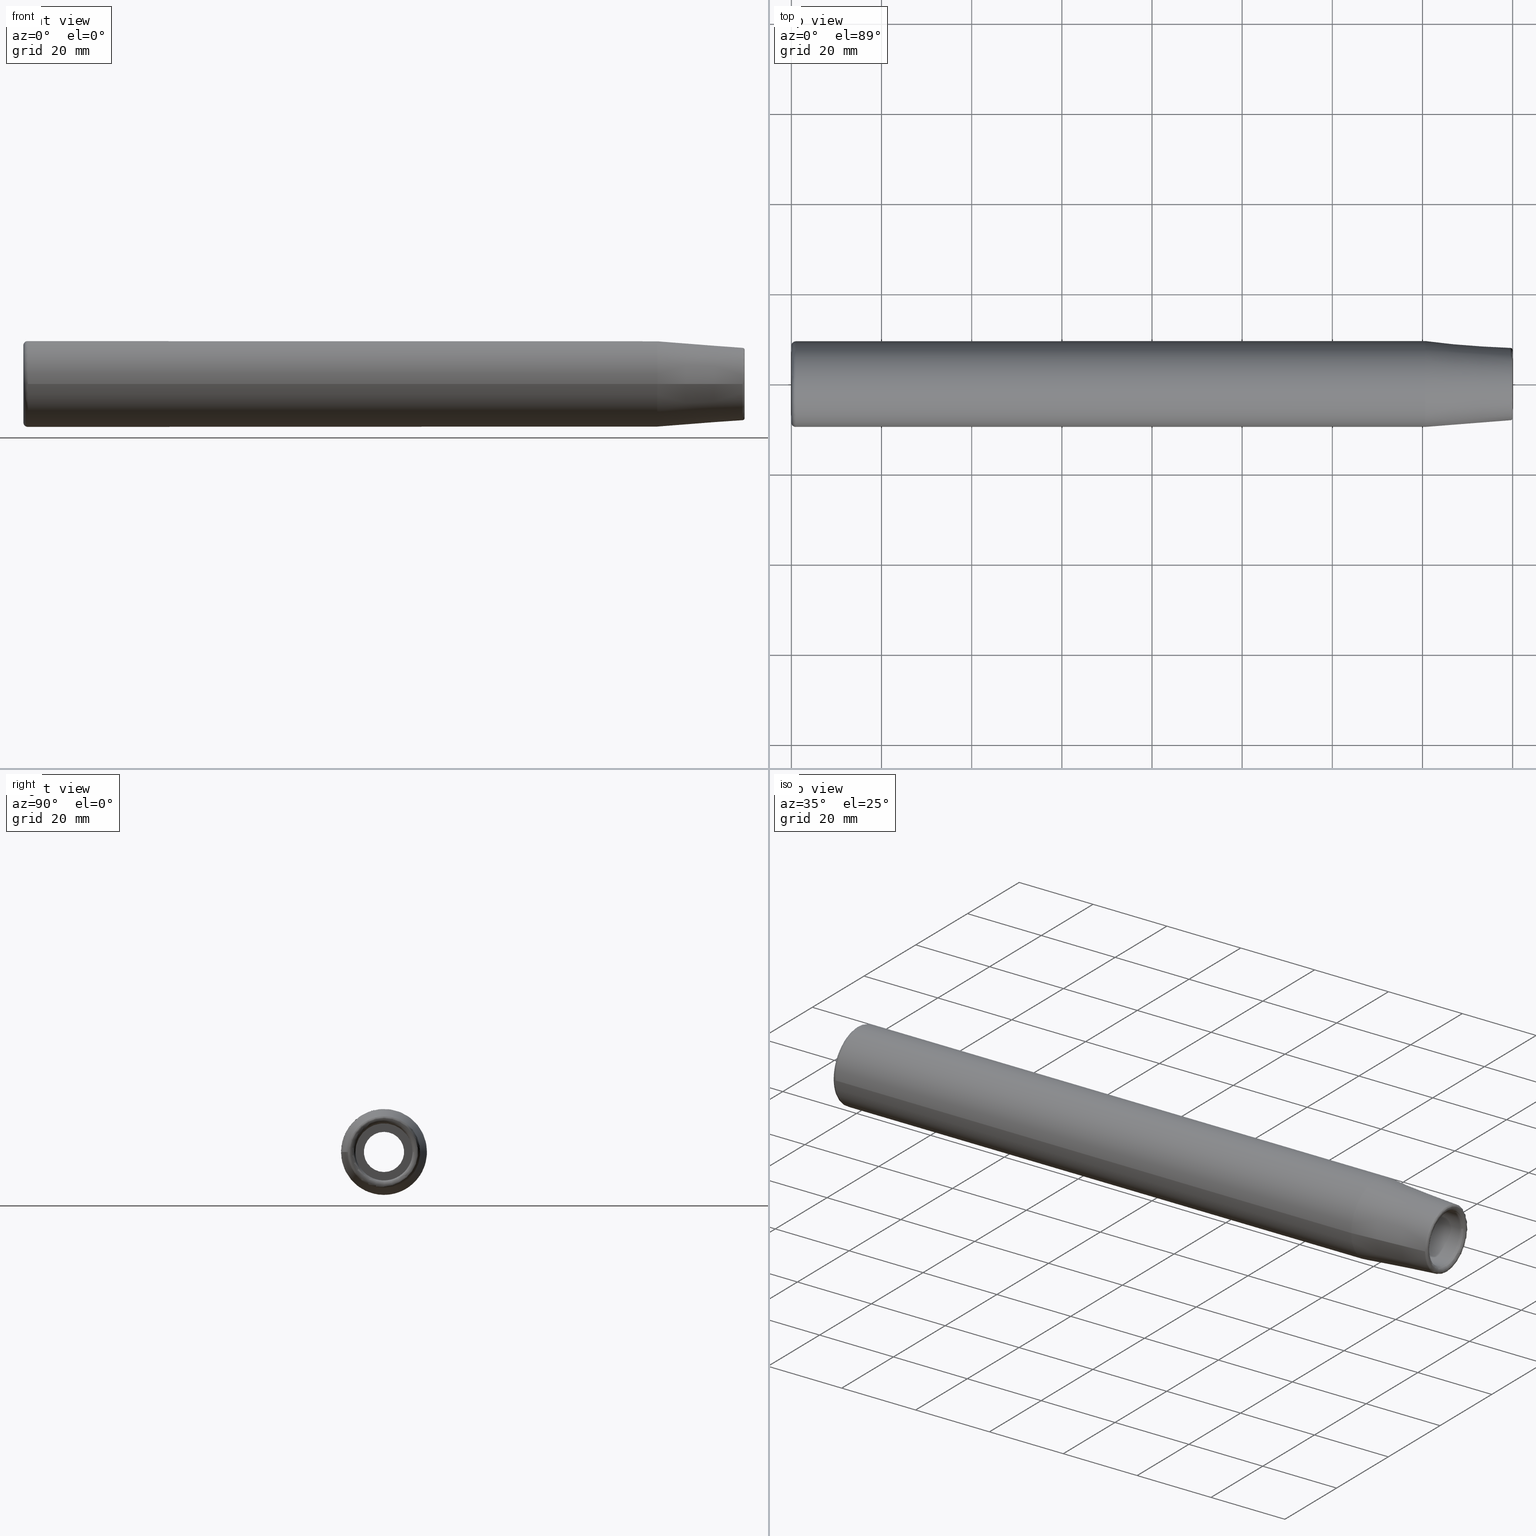
[diagram: canonical four-view strip — front | top / right | iso, engineering-drawing reading convention]
A machine part, canonical four-view strip (front | top / right | iso — engineering-drawing reading convention). The complete STEP part file that produces these views, byte-faithful:
ISO-10303-21;
HEADER;
/* Generated by software containing ST-Developer
 * from STEP Tools, Inc. (www.steptools.com) 
 */

FILE_DESCRIPTION(
/* description */ (''),
/* implementation_level */ '2;1');

FILE_NAME(
/* name */ 'ST19.05-SFH12.7-160(20240111).stp',
/* time_stamp */ '2024-01-11T09:43:24+09:00',
/* author */ ('SSKT'),
/* organization */ (''),
/* preprocessor_version */ 'ST-DEVELOPER v19.2',
/* originating_system */ 'Autodesk Inventor 2024',
/* authorisation */ '');

FILE_SCHEMA (('AUTOMOTIVE_DESIGN { 1 0 10303 214 3 1 1 }'));
ENDSEC;

DATA;
#10=MECHANICAL_DESIGN_GEOMETRIC_PRESENTATION_REPRESENTATION('',(#13),#488);
#11=SHAPE_REPRESENTATION_RELATIONSHIP('SRR','None',#495,#12);
#12=ADVANCED_BREP_SHAPE_REPRESENTATION('',(#14),#487);
#13=STYLED_ITEM('',(#504),#14);
#14=MANIFOLD_SOLID_BREP('\X2\C194B9ACB4DC\X0\1',#253);
#15=FACE_BOUND('',#55,.T.);
#16=FACE_BOUND('',#60,.T.);
#17=FACE_BOUND('',#63,.T.);
#18=FACE_BOUND('',#65,.T.);
#19=PLANE('',#296);
#20=PLANE('',#306);
#21=PLANE('',#311);
#22=PLANE('',#312);
#23=TOROIDAL_SURFACE('',#289,8.525,1.);
#24=TOROIDAL_SURFACE('',#297,7.34999999999999,1.);
#25=TOROIDAL_SURFACE('',#301,7.34999999999999,1.);
#26=TOROIDAL_SURFACE('',#313,7.5378047541709,0.5);
#27=CYLINDRICAL_SURFACE('',#281,4.458734);
#28=CYLINDRICAL_SURFACE('',#287,6.5);
#29=CYLINDRICAL_SURFACE('',#294,9.525);
#30=CYLINDRICAL_SURFACE('',#304,6.34999999999999);
#31=CYLINDRICAL_SURFACE('',#308,6.84999999999999);
#32=FACE_OUTER_BOUND('',#48,.T.);
#33=FACE_OUTER_BOUND('',#49,.T.);
#34=FACE_OUTER_BOUND('',#50,.T.);
#35=FACE_OUTER_BOUND('',#51,.T.);
#36=FACE_OUTER_BOUND('',#52,.T.);
#37=FACE_OUTER_BOUND('',#53,.T.);
#38=FACE_OUTER_BOUND('',#54,.T.);
#39=FACE_OUTER_BOUND('',#56,.T.);
#40=FACE_OUTER_BOUND('',#57,.T.);
#41=FACE_OUTER_BOUND('',#58,.T.);
#42=FACE_OUTER_BOUND('',#59,.T.);
#43=FACE_OUTER_BOUND('',#61,.T.);
#44=FACE_OUTER_BOUND('',#62,.T.);
#45=FACE_OUTER_BOUND('',#64,.T.);
#46=FACE_OUTER_BOUND('',#66,.T.);
#47=FACE_OUTER_BOUND('',#67,.T.);
#48=EDGE_LOOP('',(#166,#167,#168,#169,#170,#171));
#49=EDGE_LOOP('',(#172,#173,#174,#175,#176));
#50=EDGE_LOOP('',(#177,#178,#179,#180,#181));
#51=EDGE_LOOP('',(#182,#183,#184,#185));
#52=EDGE_LOOP('',(#186,#187,#188,#189,#190));
#53=EDGE_LOOP('',(#191,#192,#193,#194,#195));
#54=EDGE_LOOP('',(#196));
#55=EDGE_LOOP('',(#197));
#56=EDGE_LOOP('',(#198,#199,#200,#201,#202,#203));
#57=EDGE_LOOP('',(#204,#205,#206,#207,#208));
#58=EDGE_LOOP('',(#209,#210,#211,#212,#213));
#59=EDGE_LOOP('',(#214));
#60=EDGE_LOOP('',(#215));
#61=EDGE_LOOP('',(#216,#217,#218,#219));
#62=EDGE_LOOP('',(#220));
#63=EDGE_LOOP('',(#221));
#64=EDGE_LOOP('',(#222));
#65=EDGE_LOOP('',(#223));
#66=EDGE_LOOP('',(#224,#225,#226,#227,#228));
#67=EDGE_LOOP('',(#229,#230,#231,#232,#233));
#68=LINE('',#418,#76);
#69=LINE('',#427,#77);
#70=LINE('',#434,#78);
#71=LINE('',#438,#79);
#72=LINE('',#449,#80);
#73=LINE('',#465,#81);
#74=LINE('',#473,#82);
#75=LINE('',#484,#83);
#76=VECTOR('',#324,6.51128397653472);
#77=VECTOR('',#335,4.458734);
#78=VECTOR('',#344,3.25);
#79=VECTOR('',#349,6.5);
#80=VECTOR('',#362,9.525);
#81=VECTOR('',#385,6.34999999999999);
#82=VECTOR('',#394,6.84999999999999);
#83=VECTOR('',#411,8.7625);
#84=CIRCLE('',#277,6.38671079592374);
#85=CIRCLE('',#278,6.63585715714571);
#86=CIRCLE('',#279,6.63585715714571);
#87=CIRCLE('',#280,6.38671079592374);
#88=CIRCLE('',#282,4.458734);
#89=CIRCLE('',#283,4.458734);
#90=CIRCLE('',#284,4.458734);
#91=CIRCLE('',#286,6.5);
#92=CIRCLE('',#288,6.5);
#93=CIRCLE('',#290,8.525);
#94=CIRCLE('',#291,1.);
#95=CIRCLE('',#292,9.525);
#96=CIRCLE('',#293,9.525);
#97=CIRCLE('',#295,9.52500000000001);
#98=CIRCLE('',#298,1.);
#99=CIRCLE('',#299,6.34999999999999);
#100=CIRCLE('',#300,6.34999999999999);
#101=CIRCLE('',#302,7.34999999999999);
#102=CIRCLE('',#303,1.);
#103=CIRCLE('',#305,6.34999999999999);
#104=CIRCLE('',#307,7.5378047541709);
#105=CIRCLE('',#309,6.84999999999999);
#106=CIRCLE('',#310,6.84999999999999);
#107=CIRCLE('',#314,8.03626342103746);
#108=CIRCLE('',#315,8.03626342103746);
#109=CIRCLE('',#316,0.5);
#110=VERTEX_POINT('',#414);
#111=VERTEX_POINT('',#415);
#112=VERTEX_POINT('',#417);
#113=VERTEX_POINT('',#419);
#114=VERTEX_POINT('',#424);
#115=VERTEX_POINT('',#426);
#116=VERTEX_POINT('',#428);
#117=VERTEX_POINT('',#432);
#118=VERTEX_POINT('',#436);
#119=VERTEX_POINT('',#440);
#120=VERTEX_POINT('',#442);
#121=VERTEX_POINT('',#444);
#122=VERTEX_POINT('',#448);
#123=VERTEX_POINT('',#453);
#124=VERTEX_POINT('',#455);
#125=VERTEX_POINT('',#459);
#126=VERTEX_POINT('',#463);
#127=VERTEX_POINT('',#467);
#128=VERTEX_POINT('',#470);
#129=VERTEX_POINT('',#472);
#130=VERTEX_POINT('',#478);
#131=VERTEX_POINT('',#479);
#132=EDGE_CURVE('',#110,#111,#84,.T.);
#133=EDGE_CURVE('',#110,#112,#68,.T.);
#134=EDGE_CURVE('',#113,#112,#85,.T.);
#135=EDGE_CURVE('',#112,#113,#86,.T.);
#136=EDGE_CURVE('',#111,#110,#87,.T.);
#137=EDGE_CURVE('',#114,#114,#88,.T.);
#138=EDGE_CURVE('',#114,#115,#69,.T.);
#139=EDGE_CURVE('',#116,#115,#89,.T.);
#140=EDGE_CURVE('',#115,#116,#90,.T.);
#141=EDGE_CURVE('',#117,#117,#91,.T.);
#142=EDGE_CURVE('',#117,#116,#70,.T.);
#143=EDGE_CURVE('',#118,#118,#92,.T.);
#144=EDGE_CURVE('',#118,#117,#71,.T.);
#145=EDGE_CURVE('',#119,#119,#93,.T.);
#146=EDGE_CURVE('',#119,#120,#94,.T.);
#147=EDGE_CURVE('',#120,#121,#95,.T.);
#148=EDGE_CURVE('',#121,#120,#96,.T.);
#149=EDGE_CURVE('',#121,#122,#72,.T.);
#150=EDGE_CURVE('',#122,#122,#97,.T.);
#151=EDGE_CURVE('',#111,#123,#98,.T.);
#152=EDGE_CURVE('',#123,#124,#99,.T.);
#153=EDGE_CURVE('',#124,#123,#100,.T.);
#154=EDGE_CURVE('',#125,#125,#101,.T.);
#155=EDGE_CURVE('',#125,#113,#102,.T.);
#156=EDGE_CURVE('',#126,#126,#103,.T.);
#157=EDGE_CURVE('',#126,#124,#73,.T.);
#158=EDGE_CURVE('',#127,#127,#104,.T.);
#159=EDGE_CURVE('',#128,#128,#105,.T.);
#160=EDGE_CURVE('',#128,#129,#74,.T.);
#161=EDGE_CURVE('',#129,#129,#106,.T.);
#162=EDGE_CURVE('',#130,#131,#107,.T.);
#163=EDGE_CURVE('',#131,#130,#108,.T.);
#164=EDGE_CURVE('',#130,#127,#109,.T.);
#165=EDGE_CURVE('',#122,#131,#75,.T.);
#166=ORIENTED_EDGE('',*,*,#132,.F.);
#167=ORIENTED_EDGE('',*,*,#133,.T.);
#168=ORIENTED_EDGE('',*,*,#134,.F.);
#169=ORIENTED_EDGE('',*,*,#135,.F.);
#170=ORIENTED_EDGE('',*,*,#133,.F.);
#171=ORIENTED_EDGE('',*,*,#136,.F.);
#172=ORIENTED_EDGE('',*,*,#137,.F.);
#173=ORIENTED_EDGE('',*,*,#138,.T.);
#174=ORIENTED_EDGE('',*,*,#139,.F.);
#175=ORIENTED_EDGE('',*,*,#140,.F.);
#176=ORIENTED_EDGE('',*,*,#138,.F.);
#177=ORIENTED_EDGE('',*,*,#141,.T.);
#178=ORIENTED_EDGE('',*,*,#142,.T.);
#179=ORIENTED_EDGE('',*,*,#139,.T.);
#180=ORIENTED_EDGE('',*,*,#140,.T.);
#181=ORIENTED_EDGE('',*,*,#142,.F.);
#182=ORIENTED_EDGE('',*,*,#143,.F.);
#183=ORIENTED_EDGE('',*,*,#144,.T.);
#184=ORIENTED_EDGE('',*,*,#141,.F.);
#185=ORIENTED_EDGE('',*,*,#144,.F.);
#186=ORIENTED_EDGE('',*,*,#145,.T.);
#187=ORIENTED_EDGE('',*,*,#146,.T.);
#188=ORIENTED_EDGE('',*,*,#147,.T.);
#189=ORIENTED_EDGE('',*,*,#148,.T.);
#190=ORIENTED_EDGE('',*,*,#146,.F.);
#191=ORIENTED_EDGE('',*,*,#148,.F.);
#192=ORIENTED_EDGE('',*,*,#149,.T.);
#193=ORIENTED_EDGE('',*,*,#150,.T.);
#194=ORIENTED_EDGE('',*,*,#149,.F.);
#195=ORIENTED_EDGE('',*,*,#147,.F.);
#196=ORIENTED_EDGE('',*,*,#145,.F.);
#197=ORIENTED_EDGE('',*,*,#143,.T.);
#198=ORIENTED_EDGE('',*,*,#132,.T.);
#199=ORIENTED_EDGE('',*,*,#151,.T.);
#200=ORIENTED_EDGE('',*,*,#152,.T.);
#201=ORIENTED_EDGE('',*,*,#153,.T.);
#202=ORIENTED_EDGE('',*,*,#151,.F.);
#203=ORIENTED_EDGE('',*,*,#136,.T.);
#204=ORIENTED_EDGE('',*,*,#154,.T.);
#205=ORIENTED_EDGE('',*,*,#155,.T.);
#206=ORIENTED_EDGE('',*,*,#134,.T.);
#207=ORIENTED_EDGE('',*,*,#135,.T.);
#208=ORIENTED_EDGE('',*,*,#155,.F.);
#209=ORIENTED_EDGE('',*,*,#156,.F.);
#210=ORIENTED_EDGE('',*,*,#157,.T.);
#211=ORIENTED_EDGE('',*,*,#152,.F.);
#212=ORIENTED_EDGE('',*,*,#153,.F.);
#213=ORIENTED_EDGE('',*,*,#157,.F.);
#214=ORIENTED_EDGE('',*,*,#158,.F.);
#215=ORIENTED_EDGE('',*,*,#154,.F.);
#216=ORIENTED_EDGE('',*,*,#159,.F.);
#217=ORIENTED_EDGE('',*,*,#160,.T.);
#218=ORIENTED_EDGE('',*,*,#161,.T.);
#219=ORIENTED_EDGE('',*,*,#160,.F.);
#220=ORIENTED_EDGE('',*,*,#161,.F.);
#221=ORIENTED_EDGE('',*,*,#156,.T.);
#222=ORIENTED_EDGE('',*,*,#159,.T.);
#223=ORIENTED_EDGE('',*,*,#137,.T.);
#224=ORIENTED_EDGE('',*,*,#162,.T.);
#225=ORIENTED_EDGE('',*,*,#163,.T.);
#226=ORIENTED_EDGE('',*,*,#164,.T.);
#227=ORIENTED_EDGE('',*,*,#158,.T.);
#228=ORIENTED_EDGE('',*,*,#164,.F.);
#229=ORIENTED_EDGE('',*,*,#150,.F.);
#230=ORIENTED_EDGE('',*,*,#165,.T.);
#231=ORIENTED_EDGE('',*,*,#162,.F.);
#232=ORIENTED_EDGE('',*,*,#163,.F.);
#233=ORIENTED_EDGE('',*,*,#165,.F.);
#234=CONICAL_SURFACE('',#276,6.51128397653473,0.523598775598296);
#235=CONICAL_SURFACE('',#285,3.25,1.02974425867665);
#236=CONICAL_SURFACE('',#317,8.7625,0.0785398163397452);
#237=ADVANCED_FACE('',(#32),#234,.F.);
#238=ADVANCED_FACE('',(#33),#27,.F.);
#239=ADVANCED_FACE('',(#34),#235,.F.);
#240=ADVANCED_FACE('',(#35),#28,.F.);
#241=ADVANCED_FACE('',(#36),#23,.T.);
#242=ADVANCED_FACE('',(#37),#29,.T.);
#243=ADVANCED_FACE('',(#38,#15),#19,.T.);
#244=ADVANCED_FACE('',(#39),#24,.T.);
#245=ADVANCED_FACE('',(#40),#25,.T.);
#246=ADVANCED_FACE('',(#41),#30,.F.);
#247=ADVANCED_FACE('',(#42,#16),#20,.T.);
#248=ADVANCED_FACE('',(#43),#31,.F.);
#249=ADVANCED_FACE('',(#44,#17),#21,.F.);
#250=ADVANCED_FACE('',(#45,#18),#22,.F.);
#251=ADVANCED_FACE('',(#46),#26,.T.);
#252=ADVANCED_FACE('',(#47),#236,.T.);
#253=CLOSED_SHELL('',(#237,#238,#239,#240,#241,#242,#243,#244,#245,#246,
#247,#248,#249,#250,#251,#252));
#254=DERIVED_UNIT_ELEMENT(#257,1.);
#255=DERIVED_UNIT_ELEMENT(#490,-3.);
#256=DIMENSIONAL_EXPONENTS(0.,1.,0.,0.,0.,0.,0.);
#257=(
CONVERSION_BASED_UNIT('gram',#259)
MASS_UNIT()
NAMED_UNIT(#256)
);
#258=(
MASS_UNIT()
NAMED_UNIT(*)
SI_UNIT(.KILO.,.GRAM.)
);
#259=MASS_MEASURE_WITH_UNIT(MASS_MEASURE(0.001),#258);
#260=DERIVED_UNIT((#254,#255));
#261=MEASURE_REPRESENTATION_ITEM('density measure',
POSITIVE_RATIO_MEASURE(1.),#260);
#262=PROPERTY_DEFINITION_REPRESENTATION(#267,#264);
#263=PROPERTY_DEFINITION_REPRESENTATION(#268,#265);
#264=REPRESENTATION('material name',(#266),#487);
#265=REPRESENTATION('density',(#261),#487);
#266=DESCRIPTIVE_REPRESENTATION_ITEM('\X2\C77CBC18\X0\','\X2\C77CBC18\X0\');
#267=PROPERTY_DEFINITION('material property','material name',#497);
#268=PROPERTY_DEFINITION('material property','density of part',#497);
#269=DATE_TIME_ROLE('creation_date');
#270=APPLIED_DATE_AND_TIME_ASSIGNMENT(#271,#269,(#497));
#271=DATE_AND_TIME(#272,#273);
#272=CALENDAR_DATE(2024,11,1);
#273=LOCAL_TIME(0,0,0.,#274);
#274=COORDINATED_UNIVERSAL_TIME_OFFSET(0,0,.BEHIND.);
#275=AXIS2_PLACEMENT_3D('',#412,#318,#319);
#276=AXIS2_PLACEMENT_3D('',#413,#320,#321);
#277=AXIS2_PLACEMENT_3D('',#416,#322,#323);
#278=AXIS2_PLACEMENT_3D('',#420,#325,#326);
#279=AXIS2_PLACEMENT_3D('',#421,#327,#328);
#280=AXIS2_PLACEMENT_3D('',#422,#329,#330);
#281=AXIS2_PLACEMENT_3D('',#423,#331,#332);
#282=AXIS2_PLACEMENT_3D('',#425,#333,#334);
#283=AXIS2_PLACEMENT_3D('',#429,#336,#337);
#284=AXIS2_PLACEMENT_3D('',#430,#338,#339);
#285=AXIS2_PLACEMENT_3D('',#431,#340,#341);
#286=AXIS2_PLACEMENT_3D('',#433,#342,#343);
#287=AXIS2_PLACEMENT_3D('',#435,#345,#346);
#288=AXIS2_PLACEMENT_3D('',#437,#347,#348);
#289=AXIS2_PLACEMENT_3D('',#439,#350,#351);
#290=AXIS2_PLACEMENT_3D('',#441,#352,#353);
#291=AXIS2_PLACEMENT_3D('',#443,#354,#355);
#292=AXIS2_PLACEMENT_3D('',#445,#356,#357);
#293=AXIS2_PLACEMENT_3D('',#446,#358,#359);
#294=AXIS2_PLACEMENT_3D('',#447,#360,#361);
#295=AXIS2_PLACEMENT_3D('',#450,#363,#364);
#296=AXIS2_PLACEMENT_3D('',#451,#365,#366);
#297=AXIS2_PLACEMENT_3D('',#452,#367,#368);
#298=AXIS2_PLACEMENT_3D('',#454,#369,#370);
#299=AXIS2_PLACEMENT_3D('',#456,#371,#372);
#300=AXIS2_PLACEMENT_3D('',#457,#373,#374);
#301=AXIS2_PLACEMENT_3D('',#458,#375,#376);
#302=AXIS2_PLACEMENT_3D('',#460,#377,#378);
#303=AXIS2_PLACEMENT_3D('',#461,#379,#380);
#304=AXIS2_PLACEMENT_3D('',#462,#381,#382);
#305=AXIS2_PLACEMENT_3D('',#464,#383,#384);
#306=AXIS2_PLACEMENT_3D('',#466,#386,#387);
#307=AXIS2_PLACEMENT_3D('',#468,#388,#389);
#308=AXIS2_PLACEMENT_3D('',#469,#390,#391);
#309=AXIS2_PLACEMENT_3D('',#471,#392,#393);
#310=AXIS2_PLACEMENT_3D('',#474,#395,#396);
#311=AXIS2_PLACEMENT_3D('',#475,#397,#398);
#312=AXIS2_PLACEMENT_3D('',#476,#399,#400);
#313=AXIS2_PLACEMENT_3D('',#477,#401,#402);
#314=AXIS2_PLACEMENT_3D('',#480,#403,#404);
#315=AXIS2_PLACEMENT_3D('',#481,#405,#406);
#316=AXIS2_PLACEMENT_3D('',#482,#407,#408);
#317=AXIS2_PLACEMENT_3D('',#483,#409,#410);
#318=DIRECTION('axis',(0.,0.,1.));
#319=DIRECTION('refdir',(1.,0.,0.));
#320=DIRECTION('center_axis',(1.,0.,0.));
#321=DIRECTION('ref_axis',(0.,-1.,0.));
#322=DIRECTION('center_axis',(1.,0.,0.));
#323=DIRECTION('ref_axis',(0.,-1.,0.));
#324=DIRECTION('',(0.86602540378444,0.499999999999998,6.12323399573674E-17));
#325=DIRECTION('center_axis',(-1.,0.,0.));
#326=DIRECTION('ref_axis',(0.,-1.,0.));
#327=DIRECTION('center_axis',(-1.,0.,0.));
#328=DIRECTION('ref_axis',(0.,-1.,0.));
#329=DIRECTION('center_axis',(1.,0.,0.));
#330=DIRECTION('ref_axis',(0.,-1.,0.));
#331=DIRECTION('center_axis',(1.,0.,0.));
#332=DIRECTION('ref_axis',(0.,0.,-1.));
#333=DIRECTION('center_axis',(-1.,0.,0.));
#334=DIRECTION('ref_axis',(0.,0.,-1.));
#335=DIRECTION('',(-1.,0.,0.));
#336=DIRECTION('center_axis',(1.,0.,0.));
#337=DIRECTION('ref_axis',(0.,0.,-1.));
#338=DIRECTION('center_axis',(1.,0.,0.));
#339=DIRECTION('ref_axis',(0.,0.,-1.));
#340=DIRECTION('center_axis',(-1.,-1.22464679914735E-16,0.));
#341=DIRECTION('ref_axis',(0.,0.,1.));
#342=DIRECTION('center_axis',(-1.,-1.22464679914735E-16,0.));
#343=DIRECTION('ref_axis',(0.,0.,1.));
#344=DIRECTION('',(0.515038074910054,1.68046692101623E-16,0.857167300702112));
#345=DIRECTION('center_axis',(-1.,-1.22464679914735E-16,0.));
#346=DIRECTION('ref_axis',(0.,0.,1.));
#347=DIRECTION('center_axis',(1.,1.22464679914735E-16,0.));
#348=DIRECTION('ref_axis',(0.,0.,1.));
#349=DIRECTION('',(1.,1.22464679914735E-16,0.));
#350=DIRECTION('center_axis',(-1.,-1.22464679914735E-16,0.));
#351=DIRECTION('ref_axis',(0.,0.,1.));
#352=DIRECTION('center_axis',(1.,1.22464679914735E-16,0.));
#353=DIRECTION('ref_axis',(1.22464679914735E-16,-1.,-1.83697019872103E-16));
#354=DIRECTION('center_axis',(1.22464679914735E-16,-1.,1.22464679914735E-16));
#355=DIRECTION('ref_axis',(0.,-1.22464679914735E-16,-1.));
#356=DIRECTION('center_axis',(-1.,-1.22464679914735E-16,0.));
#357=DIRECTION('ref_axis',(1.16558847729675E-16,-1.,-1.83697019872103E-16));
#358=DIRECTION('center_axis',(-1.,-1.22464679914735E-16,0.));
#359=DIRECTION('ref_axis',(1.16558847729675E-16,-1.,-1.83697019872103E-16));
#360=DIRECTION('center_axis',(-1.,-1.22464679914735E-16,0.));
#361=DIRECTION('ref_axis',(0.,1.,0.));
#362=DIRECTION('',(1.,1.22464679914735E-16,0.));
#363=DIRECTION('center_axis',(-1.,-1.22464679914735E-16,0.));
#364=DIRECTION('ref_axis',(0.,0.,1.));
#365=DIRECTION('center_axis',(-1.,-1.22464679914735E-16,0.));
#366=DIRECTION('ref_axis',(0.,0.,1.));
#367=DIRECTION('center_axis',(-1.,-1.22464679914735E-16,0.));
#368=DIRECTION('ref_axis',(0.,0.,1.));
#369=DIRECTION('center_axis',(1.22464679914735E-16,-1.,1.22464679914735E-16));
#370=DIRECTION('ref_axis',(0.,-1.22464679914735E-16,-1.));
#371=DIRECTION('center_axis',(-1.,-1.22464679914735E-16,0.));
#372=DIRECTION('ref_axis',(1.31128703695885E-16,-1.,-1.22464679914735E-16));
#373=DIRECTION('center_axis',(-1.,-1.22464679914735E-16,0.));
#374=DIRECTION('ref_axis',(1.31128703695885E-16,-1.,-1.22464679914735E-16));
#375=DIRECTION('center_axis',(-1.,-1.22464679914735E-16,0.));
#376=DIRECTION('ref_axis',(0.,0.,1.));
#377=DIRECTION('center_axis',(1.,1.22464679914735E-16,0.));
#378=DIRECTION('ref_axis',(1.22464679914735E-16,-1.,-1.22464679914735E-16));
#379=DIRECTION('center_axis',(1.22464679914735E-16,-1.,1.22464679914735E-16));
#380=DIRECTION('ref_axis',(0.,-1.22464679914735E-16,-1.));
#381=DIRECTION('center_axis',(1.,0.,0.));
#382=DIRECTION('ref_axis',(0.,1.,0.));
#383=DIRECTION('center_axis',(1.,0.,0.));
#384=DIRECTION('ref_axis',(0.,0.,-1.));
#385=DIRECTION('',(1.,0.,0.));
#386=DIRECTION('center_axis',(1.,1.22464679914735E-16,0.));
#387=DIRECTION('ref_axis',(0.,0.,-1.));
#388=DIRECTION('center_axis',(-1.,-1.22464679914735E-16,0.));
#389=DIRECTION('ref_axis',(1.22464679914735E-16,-1.,-1.83697019872103E-16));
#390=DIRECTION('center_axis',(1.,0.,0.));
#391=DIRECTION('ref_axis',(0.,1.,0.));
#392=DIRECTION('center_axis',(1.,0.,0.));
#393=DIRECTION('ref_axis',(0.,0.,-1.));
#394=DIRECTION('',(1.,0.,0.));
#395=DIRECTION('center_axis',(1.,0.,0.));
#396=DIRECTION('ref_axis',(0.,0.,-1.));
#397=DIRECTION('center_axis',(1.,0.,0.));
#398=DIRECTION('ref_axis',(0.,0.,-1.));
#399=DIRECTION('center_axis',(-1.,0.,0.));
#400=DIRECTION('ref_axis',(0.,0.,1.));
#401=DIRECTION('center_axis',(-1.,-1.22464679914735E-16,0.));
#402=DIRECTION('ref_axis',(0.,0.,1.));
#403=DIRECTION('center_axis',(1.,2.07227469992857E-16,6.90758233309524E-17));
#404=DIRECTION('ref_axis',(2.07227469992857E-16,-1.,-3.06161699786838E-17));
#405=DIRECTION('center_axis',(1.,2.07227469992857E-16,6.90758233309524E-17));
#406=DIRECTION('ref_axis',(2.07227469992857E-16,-1.,-3.06161699786838E-17));
#407=DIRECTION('center_axis',(1.22464679914735E-16,-1.,1.22464679914735E-16));
#408=DIRECTION('ref_axis',(0.,-1.22464679914735E-16,-1.));
#409=DIRECTION('center_axis',(-1.,-1.22464679914735E-16,0.));
#410=DIRECTION('ref_axis',(0.,1.,0.));
#411=DIRECTION('',(0.996917333733128,0.0784590957278455,-9.60846804471016E-18));
#412=CARTESIAN_POINT('',(0.,0.,0.));
#413=CARTESIAN_POINT('Origin',(-0.515767078078678,0.,0.));
#414=CARTESIAN_POINT('',(-0.731534156157361,6.38671079592374,7.82146493330785E-16));
#415=CARTESIAN_POINT('',(-0.731534156157361,-7.49268909696557E-16,-6.38671079592374));
#416=CARTESIAN_POINT('Origin',(-0.731534156157361,0.,0.));
#417=CARTESIAN_POINT('',(-0.299999999999997,6.63585715714571,8.12658122709755E-16));
#418=CARTESIAN_POINT('',(-0.515767078078678,6.51128397653473,7.9740230802027E-16));
#419=CARTESIAN_POINT('',(-0.299999999999998,-7.2693284676944E-16,-6.63585715714571));
#420=CARTESIAN_POINT('Origin',(-0.299999999999998,0.,0.));
#421=CARTESIAN_POINT('Origin',(-0.299999999999998,0.,0.));
#422=CARTESIAN_POINT('Origin',(-0.731534156157361,0.,0.));
#423=CARTESIAN_POINT('Origin',(-61.55,0.,0.));
#424=CARTESIAN_POINT('',(-49.,-5.46037432134947E-16,4.458734));
#425=CARTESIAN_POINT('Origin',(-49.,0.,0.));
#426=CARTESIAN_POINT('',(-64.7734836476401,-5.46037432134947E-16,4.458734));
#427=CARTESIAN_POINT('',(-61.55,-5.46037432134947E-16,4.458734));
#428=CARTESIAN_POINT('',(-64.7734836476401,-8.47850137400553E-15,-4.458734));
#429=CARTESIAN_POINT('Origin',(-64.7734836476401,0.,0.));
#430=CARTESIAN_POINT('Origin',(-64.7734836476401,0.,0.));
#431=CARTESIAN_POINT('Origin',(-64.0472029881604,-7.84352021337915E-15,
0.));
#432=CARTESIAN_POINT('',(-66.,-8.87868929381831E-15,-6.5));
#433=CARTESIAN_POINT('Origin',(-66.,-8.08266887437253E-15,0.));
#434=CARTESIAN_POINT('',(-64.0472029881604,-8.24153042310204E-15,-3.25));
#435=CARTESIAN_POINT('Origin',(-113.,-1.38385088303651E-14,0.));
#436=CARTESIAN_POINT('',(-160.,-2.03903692058034E-14,-6.5));
#437=CARTESIAN_POINT('Origin',(-160.,-1.95943487863577E-14,0.));
#438=CARTESIAN_POINT('',(-113.,-1.46345292498109E-14,-6.5));
#439=CARTESIAN_POINT('Origin',(-159.,-1.94718841064429E-14,0.));
#440=CARTESIAN_POINT('',(-160.,-2.06383601826308E-14,-8.525));
#441=CARTESIAN_POINT('Origin',(-160.,-1.95943487863577E-14,0.));
#442=CARTESIAN_POINT('',(-159.,-2.06383601826308E-14,-9.525));
#443=CARTESIAN_POINT('Origin',(-159.,-2.0515895502716E-14,-8.525));
#444=CARTESIAN_POINT('',(-159.,-9.52500000000002,1.16647607618785E-15));
#445=CARTESIAN_POINT('Origin',(-159.,-1.94718841064429E-14,0.));
#446=CARTESIAN_POINT('Origin',(-159.,-1.94718841064429E-14,0.));
#447=CARTESIAN_POINT('Origin',(-89.6884811113332,-1.09836711313382E-14,
0.));
#448=CARTESIAN_POINT('',(-19.3769622226664,-9.525,1.16647607618785E-15));
#449=CARTESIAN_POINT('',(-89.6884811113332,-9.52500000000001,1.16647607618785E-15));
#450=CARTESIAN_POINT('Origin',(-19.3769622226664,-2.37299347631876E-15,
0.));
#451=CARTESIAN_POINT('Origin',(-160.,-1.88737914186277E-14,0.));
#452=CARTESIAN_POINT('Origin',(-1.,0.,0.));
#453=CARTESIAN_POINT('',(-1.,-7.77650717458568E-16,-6.34999999999999));
#454=CARTESIAN_POINT('Origin',(-1.,-9.00115397373304E-16,-7.34999999999999));
#455=CARTESIAN_POINT('',(-1.,-6.34999999999999,-7.77650717458568E-16));
#456=CARTESIAN_POINT('Origin',(-1.,0.,0.));
#457=CARTESIAN_POINT('Origin',(-1.,0.,0.));
#458=CARTESIAN_POINT('Origin',(-1.,0.,0.));
#459=CARTESIAN_POINT('',(9.71445146547012E-16,-7.77650717458568E-16,-7.34999999999999));
#460=CARTESIAN_POINT('Origin',(9.71445146547012E-16,1.22464679914736E-16,
0.));
#461=CARTESIAN_POINT('Origin',(-1.,-9.00115397373304E-16,-7.34999999999999));
#462=CARTESIAN_POINT('Origin',(-19.,0.,0.));
#463=CARTESIAN_POINT('',(-38.,-6.34999999999999,-7.77650717458568E-16));
#464=CARTESIAN_POINT('Origin',(-38.,0.,0.));
#465=CARTESIAN_POINT('',(-19.,-6.34999999999999,-7.77650717458568E-16));
#466=CARTESIAN_POINT('Origin',(0.,8.,0.));
#467=CARTESIAN_POINT('',(9.71445146547012E-16,-9.23114846479308E-16,-7.5378047541709));
#468=CARTESIAN_POINT('Origin',(9.71445146547012E-16,1.54074395550979E-30,
0.));
#469=CARTESIAN_POINT('Origin',(-43.5,0.,0.));
#470=CARTESIAN_POINT('',(-49.,-6.84999999999999,-8.38883057415936E-16));
#471=CARTESIAN_POINT('Origin',(-49.,0.,0.));
#472=CARTESIAN_POINT('',(-38.,-6.84999999999999,-8.38883057415936E-16));
#473=CARTESIAN_POINT('',(-43.5,-6.84999999999999,-8.38883057415936E-16));
#474=CARTESIAN_POINT('Origin',(-38.,0.,0.));
#475=CARTESIAN_POINT('Origin',(-38.,6.34999999999999,0.));
#476=CARTESIAN_POINT('Origin',(-49.,6.84999999999999,0.));
#477=CARTESIAN_POINT('Origin',(-0.5,-6.12323399573663E-17,0.));
#478=CARTESIAN_POINT('',(-0.460770452136078,-1.04058653350286E-15,-8.03626342103746));
#479=CARTESIAN_POINT('',(-0.460770452136076,-8.03626342103746,9.84158427567848E-16));
#480=CARTESIAN_POINT('Origin',(-0.460770452136078,0.,1.23019803445981E-15));
#481=CARTESIAN_POINT('Origin',(-0.460770452136078,0.,1.23019803445981E-15));
#482=CARTESIAN_POINT('Origin',(-0.5,-9.84347186436675E-16,-7.5378047541709));
#483=CARTESIAN_POINT('Origin',(-9.68848111133319,-1.18649673815938E-15,
0.));
#484=CARTESIAN_POINT('',(-9.68848111133319,-8.7625,1.07309675775287E-15));
#485=UNCERTAINTY_MEASURE_WITH_UNIT(LENGTH_MEASURE(0.01),#489,
'DISTANCE_ACCURACY_VALUE',
'Maximum model space distance between geometric entities at asserted c
onnectivities');
#486=UNCERTAINTY_MEASURE_WITH_UNIT(LENGTH_MEASURE(0.01),#489,
'DISTANCE_ACCURACY_VALUE',
'Maximum model space distance between geometric entities at asserted c
onnectivities');
#487=(
GEOMETRIC_REPRESENTATION_CONTEXT(3)
GLOBAL_UNCERTAINTY_ASSIGNED_CONTEXT((#485))
GLOBAL_UNIT_ASSIGNED_CONTEXT((#489,#491,#492))
REPRESENTATION_CONTEXT('','3D')
);
#488=(
GEOMETRIC_REPRESENTATION_CONTEXT(3)
GLOBAL_UNCERTAINTY_ASSIGNED_CONTEXT((#486))
GLOBAL_UNIT_ASSIGNED_CONTEXT((#489,#491,#492))
REPRESENTATION_CONTEXT('','3D')
);
#489=(
LENGTH_UNIT()
NAMED_UNIT(*)
SI_UNIT(.MILLI.,.METRE.)
);
#490=(
LENGTH_UNIT()
NAMED_UNIT(*)
SI_UNIT(.CENTI.,.METRE.)
);
#491=(
NAMED_UNIT(*)
PLANE_ANGLE_UNIT()
SI_UNIT($,.RADIAN.)
);
#492=(
NAMED_UNIT(*)
SI_UNIT($,.STERADIAN.)
SOLID_ANGLE_UNIT()
);
#493=SHAPE_DEFINITION_REPRESENTATION(#494,#495);
#494=PRODUCT_DEFINITION_SHAPE('',$,#497);
#495=SHAPE_REPRESENTATION('',(#275),#487);
#496=PRODUCT_DEFINITION_CONTEXT('part definition',#501,'design');
#497=PRODUCT_DEFINITION('ST19.05-SFH12.7-160(20240111)',
'ST19.05-SFH12.7-160(20240111)',#498,#496);
#498=PRODUCT_DEFINITION_FORMATION('',$,#503);
#499=PRODUCT_RELATED_PRODUCT_CATEGORY('ST19.05-SFH12.7-160(20240111)',
'ST19.05-SFH12.7-160(20240111)',(#503));
#500=APPLICATION_PROTOCOL_DEFINITION('international standard',
'automotive_design',2009,#501);
#501=APPLICATION_CONTEXT(
'Core Data for Automotive Mechanical Design Process');
#502=PRODUCT_CONTEXT('part definition',#501,'mechanical');
#503=PRODUCT('ST19.05-SFH12.7-160(20240111)',
'ST19.05-SFH12.7-160(20240111)',$,(#502));
#504=PRESENTATION_STYLE_ASSIGNMENT((#505));
#505=SURFACE_STYLE_USAGE(.BOTH.,#508);
#506=SURFACE_STYLE_RENDERING_WITH_PROPERTIES($,#512,(#507));
#507=SURFACE_STYLE_TRANSPARENT(0.);
#508=SURFACE_SIDE_STYLE('',(#509,#506));
#509=SURFACE_STYLE_FILL_AREA(#510);
#510=FILL_AREA_STYLE('',(#511));
#511=FILL_AREA_STYLE_COLOUR('',#512);
#512=COLOUR_RGB('',0.749019607843137,0.749019607843137,0.749019607843137);
ENDSEC;
END-ISO-10303-21;
